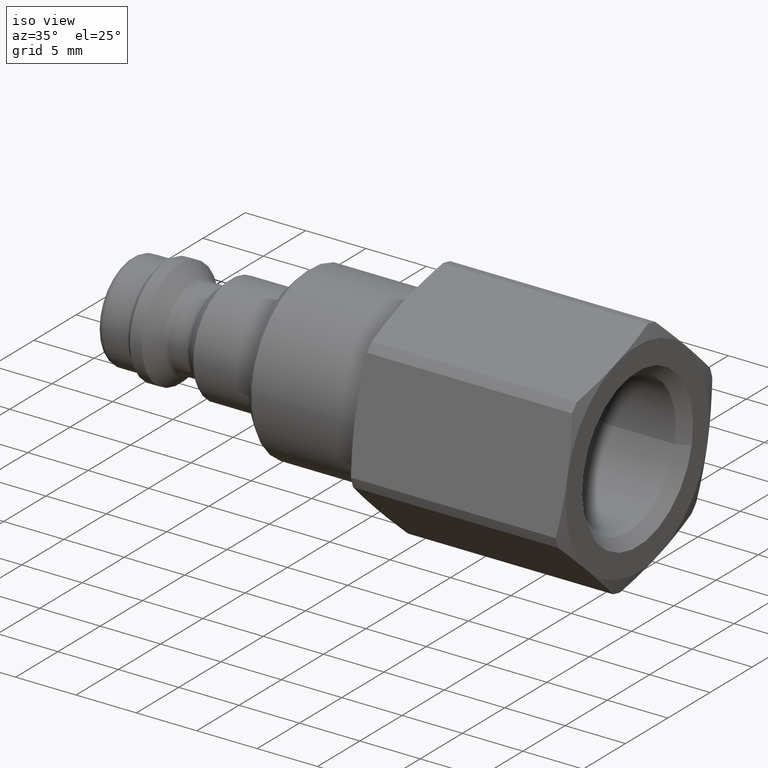
[diagram: clean part render]
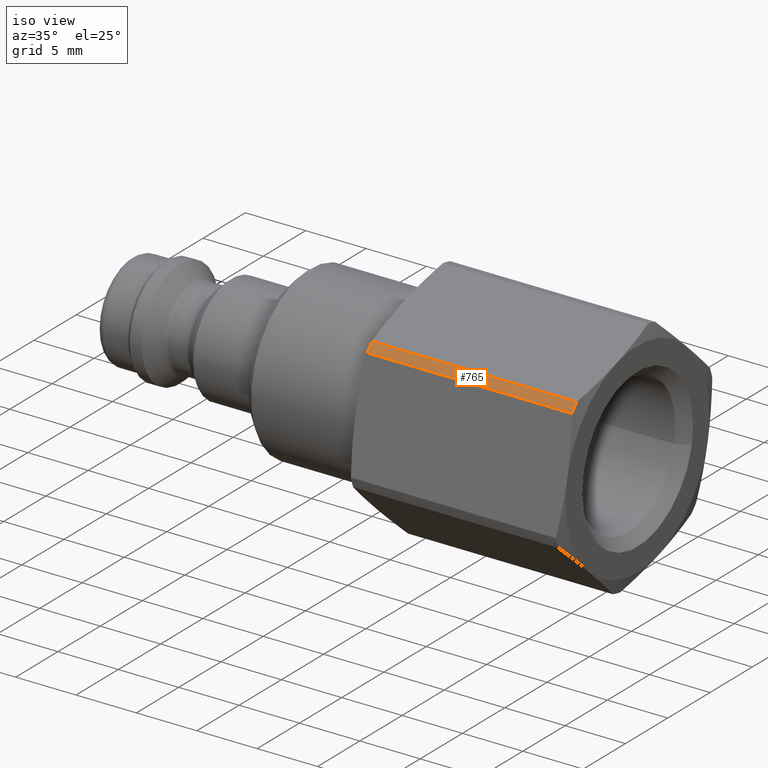
[diagram: same view with one face highlighted and labeled with its STEP entity id]
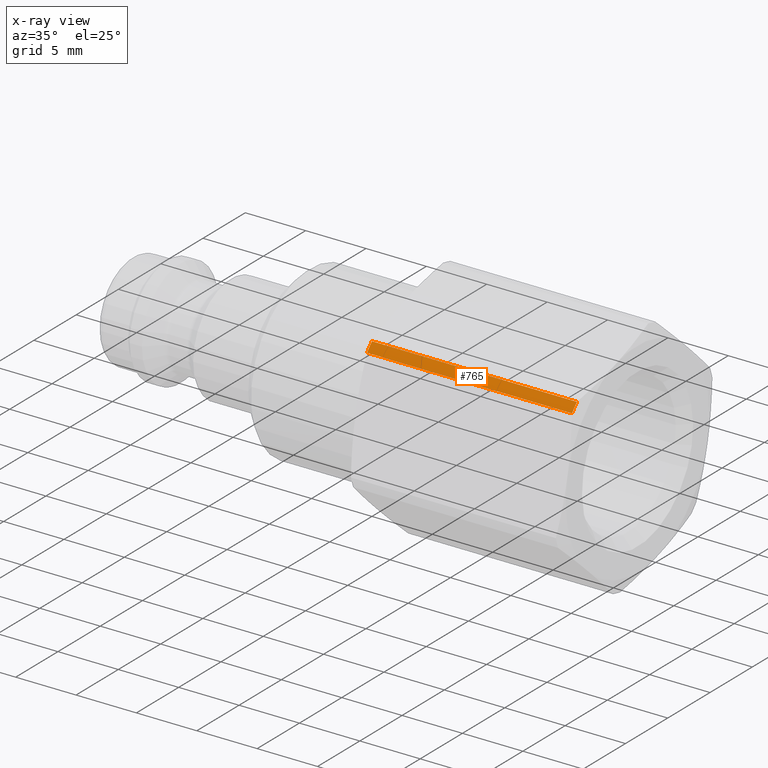
[diagram: x-ray of the same camera — body ghosted, the highlighted face saturated]
A machine part, iso view. The second image highlights one B-rep face of the part: STEP entity #765.
The next image is the same camera in x-ray: the body ghosted, the highlighted face saturated — about 0% of this face is hidden behind the body in this view.
In plain terms, the highlighted cylindrical surface (partial cylindrical patch) has radius 9.575 mm, axis along (-1, -0, 0).
Its self-contained STEP definition (entity closure, byte-faithful):
#197=CARTESIAN_POINT('',(24.738045381863468,-6.761532961845099,6.779549911747998));
#198=VERTEX_POINT('',#197);
#212=CARTESIAN_POINT('',(41.711954618136559,-6.761532961845093,6.779549911747999));
#213=VERTEX_POINT('',#212);
#214=CARTESIAN_POINT('',(41.711954618136552,-6.761532961845097,6.779549911747999));
#215=DIRECTION('',(-1.0,0.0,0.0));
#216=VECTOR('',#215,16.973909236273087);
#217=LINE('',#214,#216);
#218=EDGE_CURVE('',#213,#198,#217,.T.);
#241=CARTESIAN_POINT('',(41.711954618136559,-7.345834099374971,6.141607801256925));
#242=VERTEX_POINT('',#241);
#258=CARTESIAN_POINT('',(24.738045381863468,-7.34583409937497,6.14160780125693));
#259=VERTEX_POINT('',#258);
#260=CARTESIAN_POINT('',(24.738045381863465,-7.345834099374971,6.141607801256926));
#261=DIRECTION('',(1.0,0.0,0.0));
#262=VECTOR('',#261,16.973909236273087);
#263=LINE('',#260,#262);
#264=EDGE_CURVE('',#259,#242,#263,.T.);
#590=CARTESIAN_POINT('',(24.738045381863465,-2.808187E-033,0.0));
#591=DIRECTION('',(-1.0,-1.550753E-034,3.434260E-035));
#592=DIRECTION('',(-1.588325E-034,0.976344884123284,-0.216219026096897));
#593=AXIS2_PLACEMENT_3D('',#590,#591,#592);
#594=CIRCLE('',#593,9.575000000000003);
#595=EDGE_CURVE('',#259,#198,#594,.T.);
#748=CARTESIAN_POINT('',(33.225000000000009,-1.427523E-033,5.345529E-050));
#749=DIRECTION('',(-1.0,-1.626807E-034,0.0));
#750=DIRECTION('',(-1.588325E-034,0.976344884123284,-0.216219026096897));
#751=AXIS2_PLACEMENT_3D('',#748,#749,#750);
#752=CYLINDRICAL_SURFACE('',#751,9.575000000000001);
#753=ORIENTED_EDGE('',*,*,#218,.T.);
#754=ORIENTED_EDGE('',*,*,#595,.F.);
#755=ORIENTED_EDGE('',*,*,#264,.T.);
#756=CARTESIAN_POINT('',(41.711954618136559,-4.685943E-035,0.0));
#757=DIRECTION('',(-1.0,-1.550753E-034,3.434260E-035));
#758=DIRECTION('',(-1.588325E-034,0.976344884123284,-0.216219026096897));
#759=AXIS2_PLACEMENT_3D('',#756,#757,#758);
#760=CIRCLE('',#759,9.574999999999999);
#761=EDGE_CURVE('',#242,#213,#760,.T.);
#762=ORIENTED_EDGE('',*,*,#761,.T.);
#763=EDGE_LOOP('',(#753,#754,#755,#762));
#764=FACE_OUTER_BOUND('',#763,.T.);
#765=ADVANCED_FACE('',(#764),#752,.T.);